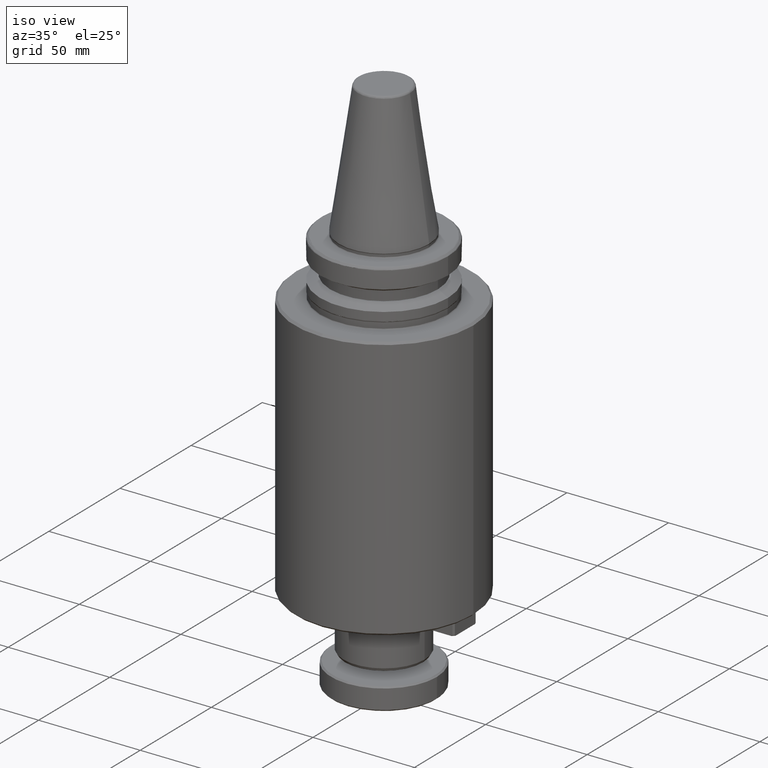
[diagram: clean part render]
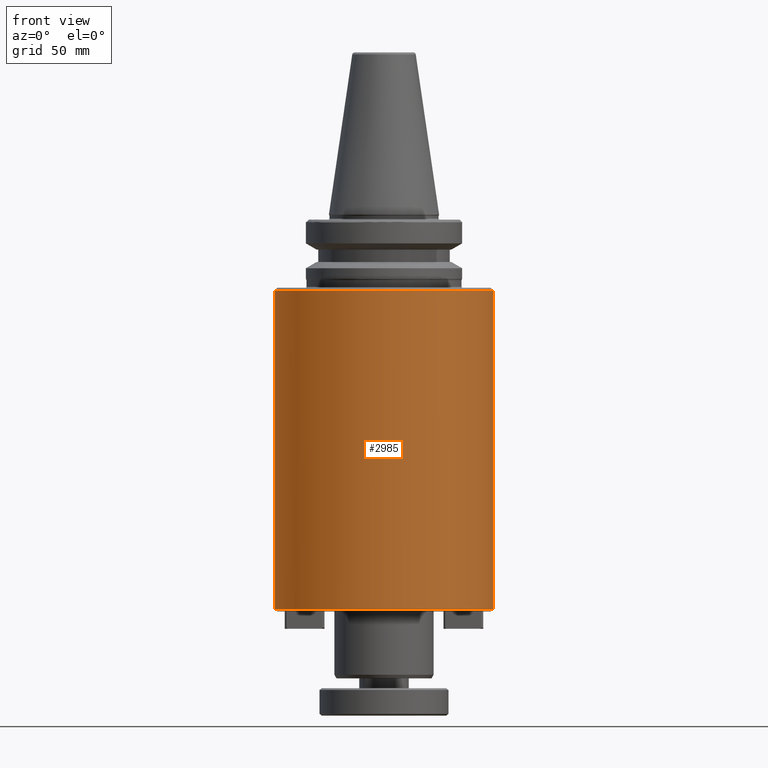
[diagram: tour spotlight — one face highlighted and labeled with its STEP entity id]
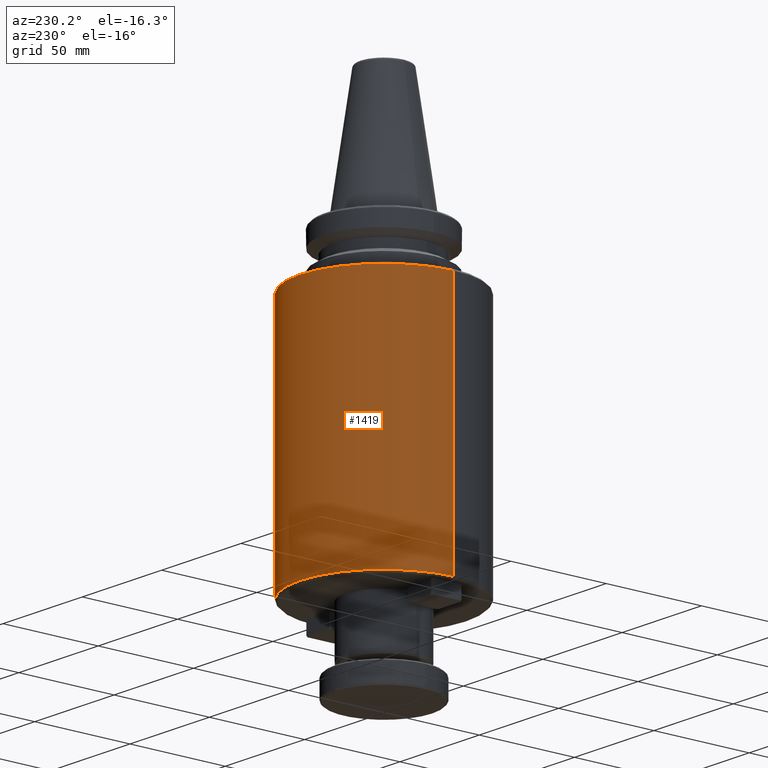
[diagram: tour spotlight — one face highlighted and labeled with its STEP entity id]
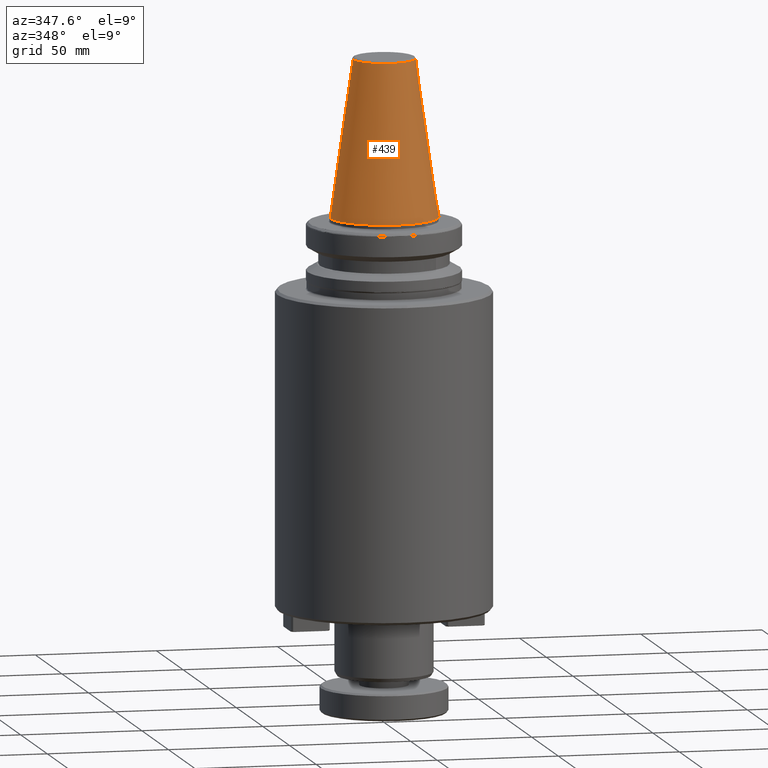
[diagram: tour spotlight — one face highlighted and labeled with its STEP entity id]
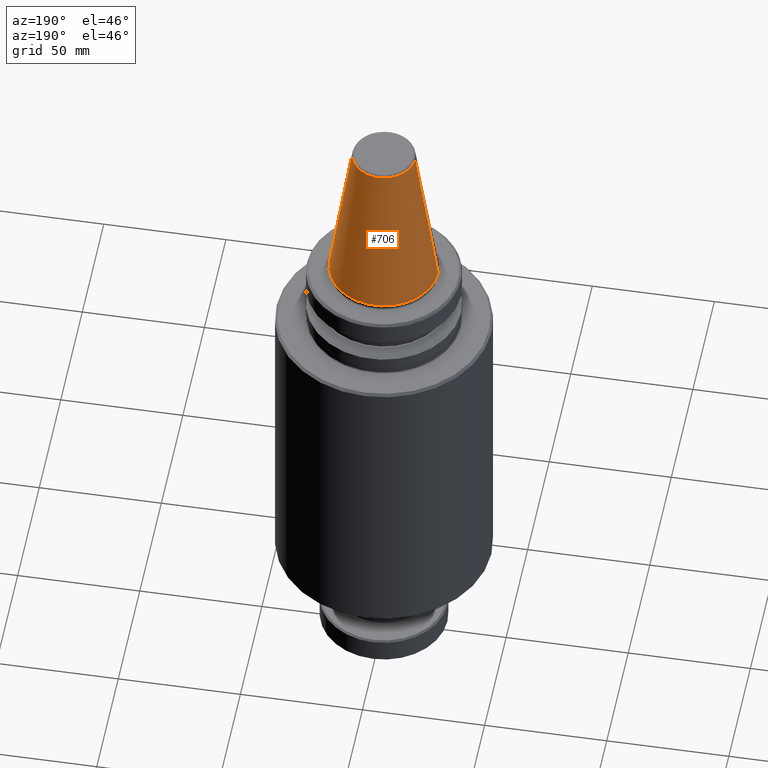
[diagram: tour spotlight — one face highlighted and labeled with its STEP entity id]
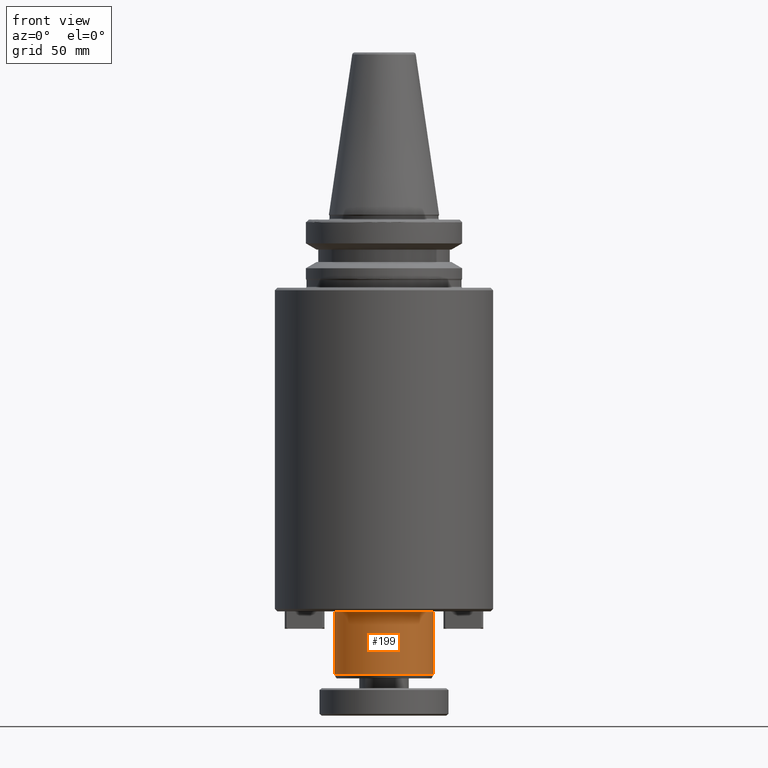
[diagram: tour spotlight — one face highlighted and labeled with its STEP entity id]
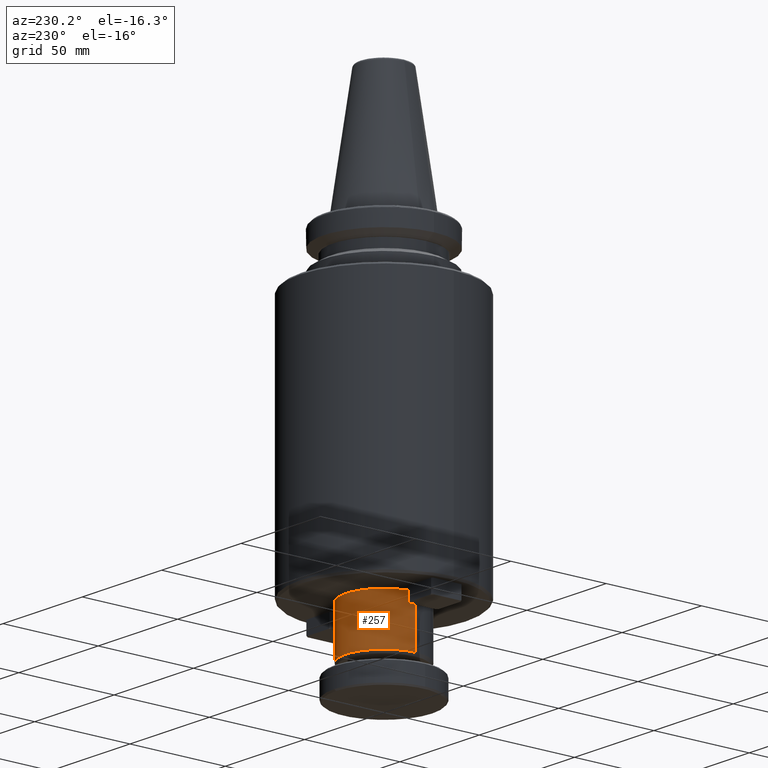
[diagram: tour spotlight — one face highlighted and labeled with its STEP entity id]
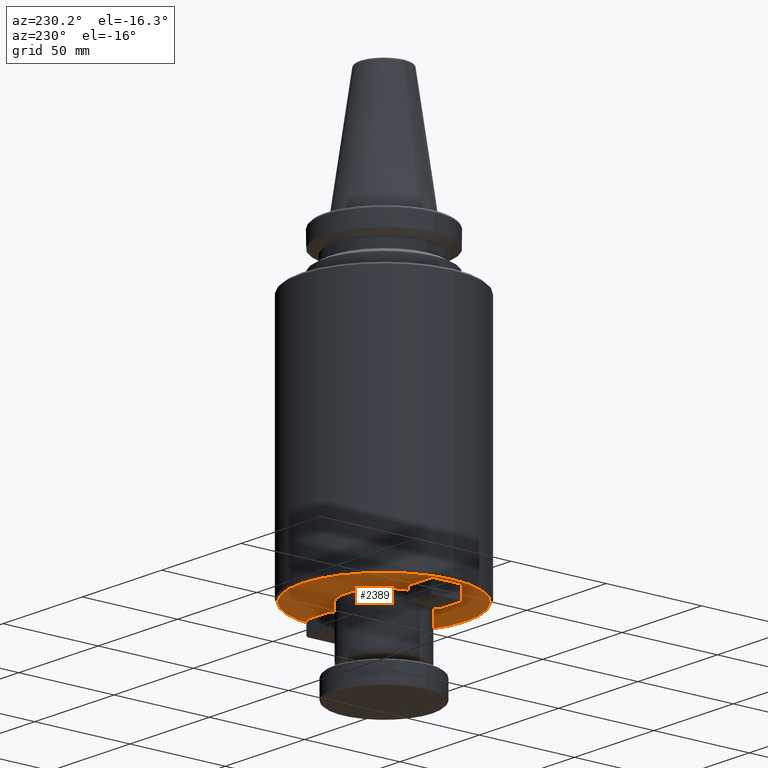
[diagram: tour spotlight — one face highlighted and labeled with its STEP entity id]
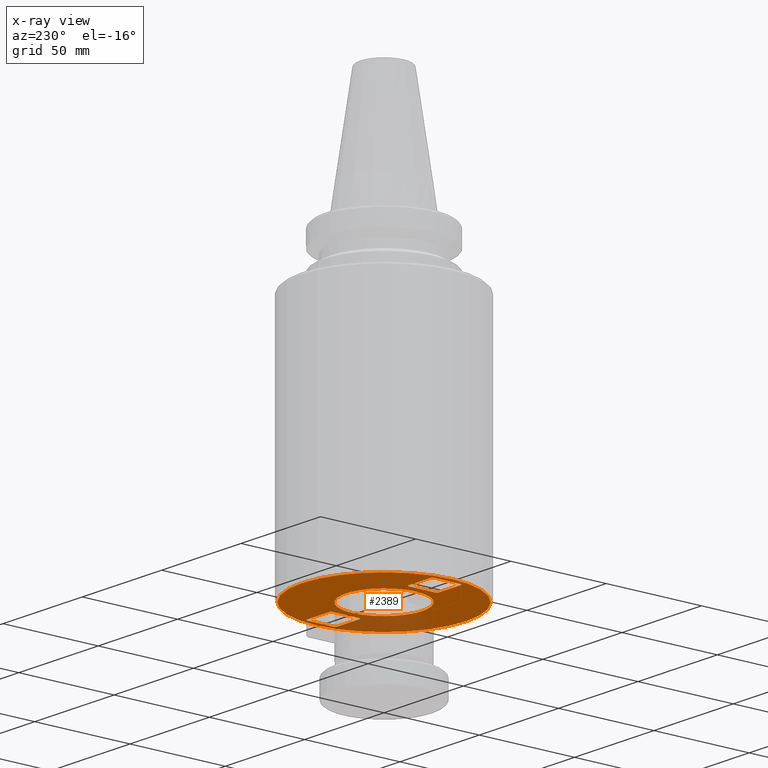
[diagram: x-ray of the same camera — body ghosted, this tour face saturated]
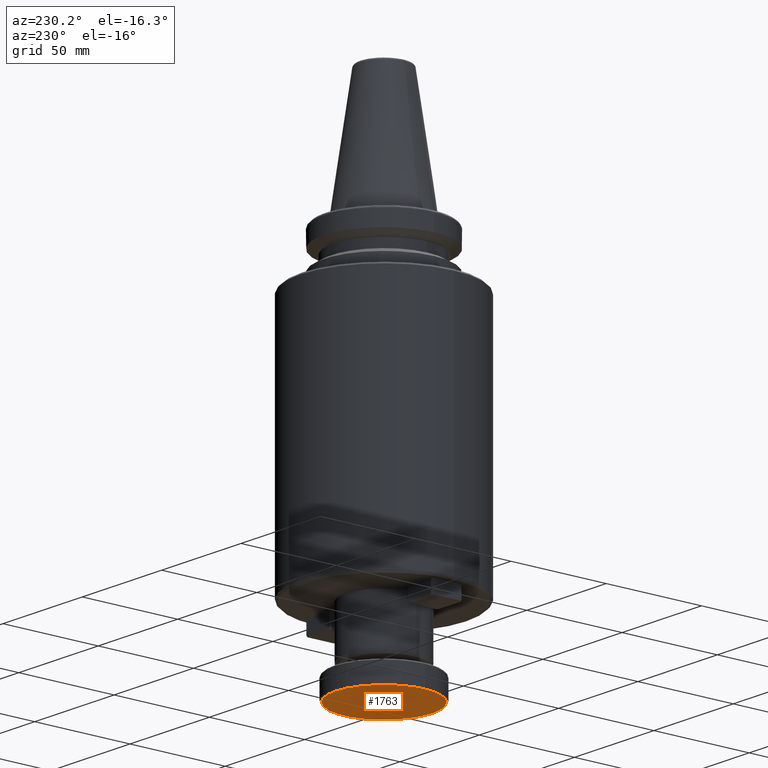
[diagram: tour spotlight — one face highlighted and labeled with its STEP entity id]
A machine part: a face-by-face anatomy tour. The part has 93 B-rep faces; the first image is the clean iso view, then the 8 largest visible faces are spotlighted one at a time (largest first), each with its STEP entity span.

Face 1 — front view, entity #2985. In plain terms, the highlighted cylindrical surface (partial cylindrical patch) has radius 44 mm, axis along (0, 0, 1).
Definition (entity closure, byte-faithful):
#42 = CARTESIAN_POINT ( 'NONE',  ( -44.00000000000000000, 5.388445916248353600E-015, -159.0000000000000300 ) ) ;
#125 = CARTESIAN_POINT ( 'NONE',  ( 5.388445916248351300E-015, -43.99999999999997900, -30.50000000000000000 ) ) ;
#158 = VECTOR ( 'NONE', #402, 1000.000000000000000 ) ;
#261 = CIRCLE ( 'NONE', #3400, 43.99999999999998600 ) ;
#402 = DIRECTION ( 'NONE',  ( 0.0000000000000000000, 0.0000000000000000000, 1.000000000000000000 ) ) ;
#408 = CARTESIAN_POINT ( 'NONE',  ( -43.99999999999998600, 5.388445916248352000E-015, 88.34764052968309000 ) ) ;
#499 = DIRECTION ( 'NONE',  ( 1.000000000000000000, 0.0000000000000000000, 0.0000000000000000000 ) ) ;
#546 = CARTESIAN_POINT ( 'NONE',  ( 0.0000000000000000000, 0.0000000000000000000, 88.34764052968309000 ) ) ;
#560 = ORIENTED_EDGE ( 'NONE', *, *, #2307, .T. ) ;
#566 = DIRECTION ( 'NONE',  ( 0.0000000000000000000, 0.0000000000000000000, 1.000000000000000000 ) ) ;
#573 = DIRECTION ( 'NONE',  ( 1.000000000000000000, 0.0000000000000000000, 0.0000000000000000000 ) ) ;
#677 = CARTESIAN_POINT ( 'NONE',  ( 43.99999999999998600, 0.0000000000000000000, 88.34764052968309000 ) ) ;
#769 = CARTESIAN_POINT ( 'NONE',  ( 0.0000000000000000000, 0.0000000000000000000, -30.50000000000000000 ) ) ;
#823 = VERTEX_POINT ( 'NONE', #2327 ) ;
#827 = EDGE_LOOP ( 'NONE', ( #1461, #1934, #3255, #560, #1923 ) ) ;
#1132 = CYLINDRICAL_SURFACE ( 'NONE', #2130, 43.99999999999998600 ) ;
#1133 = EDGE_CURVE ( 'NONE', #3306, #823, #261, .T. ) ;
#1155 = VERTEX_POINT ( 'NONE', #1602 ) ;
#1251 = CIRCLE ( 'NONE', #3314, 43.99999999999998600 ) ;
#1378 = EDGE_CURVE ( 'NONE', #1155, #2579, #2560, .T. ) ;
#1461 = ORIENTED_EDGE ( 'NONE', *, *, #3112, .F. ) ;
#1486 = DIRECTION ( 'NONE',  ( 1.000000000000000000, 0.0000000000000000000, 0.0000000000000000000 ) ) ;
#1493 = DIRECTION ( 'NONE',  ( 0.0000000000000000000, 0.0000000000000000000, 1.000000000000000000 ) ) ;
#1494 = CARTESIAN_POINT ( 'NONE',  ( 0.0000000000000000000, 0.0000000000000000000, -159.0000000000000300 ) ) ;
#1515 = CARTESIAN_POINT ( 'NONE',  ( 43.99999999999998600, 0.0000000000000000000, -30.50000000000000000 ) ) ;
#1602 = CARTESIAN_POINT ( 'NONE',  ( 44.00000000000000000, 0.0000000000000000000, -159.0000000000000300 ) ) ;
#1923 = ORIENTED_EDGE ( 'NONE', *, *, #1133, .T. ) ;
#1934 = ORIENTED_EDGE ( 'NONE', *, *, #2599, .T. ) ;
#2045 = DIRECTION ( 'NONE',  ( 1.000000000000000000, 0.0000000000000000000, 0.0000000000000000000 ) ) ;
#2050 = DIRECTION ( 'NONE',  ( -0.0000000000000000000, -0.0000000000000000000, -1.000000000000000000 ) ) ;
#2054 = CARTESIAN_POINT ( 'NONE',  ( 0.0000000000000000000, 0.0000000000000000000, -30.50000000000000000 ) ) ;
#2100 = DIRECTION ( 'NONE',  ( 0.0000000000000000000, 0.0000000000000000000, 1.000000000000000000 ) ) ;
#2130 = AXIS2_PLACEMENT_3D ( 'NONE', #546, #566, #573 ) ;
#2285 = LINE ( 'NONE', #408, #158 ) ;
#2307 = EDGE_CURVE ( 'NONE', #2579, #3306, #1251, .T. ) ;
#2327 = CARTESIAN_POINT ( 'NONE',  ( -43.99999999999998600, 5.388445916248352000E-015, -30.50000000000000000 ) ) ;
#2440 = DIRECTION ( 'NONE',  ( -0.0000000000000000000, -0.0000000000000000000, -1.000000000000000000 ) ) ;
#2560 = LINE ( 'NONE', #677, #2615 ) ;
#2579 = VERTEX_POINT ( 'NONE', #1515 ) ;
#2582 = FACE_OUTER_BOUND ( 'NONE', #827, .T. ) ;
#2599 = EDGE_CURVE ( 'NONE', #3343, #1155, #3164, .T. ) ;
#2615 = VECTOR ( 'NONE', #2100, 1000.000000000000000 ) ;
#2985 = ADVANCED_FACE ( 'NONE', ( #2582 ), #1132, .T. ) ;
#3007 = AXIS2_PLACEMENT_3D ( 'NONE', #1494, #1493, #1486 ) ;
#3112 = EDGE_CURVE ( 'NONE', #3343, #823, #2285, .T. ) ;
#3164 = CIRCLE ( 'NONE', #3007, 43.99999999999998600 ) ;
#3255 = ORIENTED_EDGE ( 'NONE', *, *, #1378, .T. ) ;
#3306 = VERTEX_POINT ( 'NONE', #125 ) ;
#3314 = AXIS2_PLACEMENT_3D ( 'NONE', #2054, #2050, #2045 ) ;
#3343 = VERTEX_POINT ( 'NONE', #42 ) ;
#3400 = AXIS2_PLACEMENT_3D ( 'NONE', #769, #2440, #499 ) ;

Face 2 — auxiliary view, entity #1419. In plain terms, the highlighted cylindrical surface (partial cylindrical patch) has radius 44 mm, axis along (0, 0, 1).
Definition (entity closure, byte-faithful):
#42 = CARTESIAN_POINT ( 'NONE',  ( -44.00000000000000000, 5.388445916248353600E-015, -159.0000000000000300 ) ) ;
#128 = DIRECTION ( 'NONE',  ( 1.000000000000000000, 0.0000000000000000000, 0.0000000000000000000 ) ) ;
#133 = DIRECTION ( 'NONE',  ( 0.0000000000000000000, 0.0000000000000000000, 1.000000000000000000 ) ) ;
#136 = CARTESIAN_POINT ( 'NONE',  ( 0.0000000000000000000, 0.0000000000000000000, -159.0000000000000300 ) ) ;
#158 = VECTOR ( 'NONE', #402, 1000.000000000000000 ) ;
#323 = VERTEX_POINT ( 'NONE', #1620 ) ;
#402 = DIRECTION ( 'NONE',  ( 0.0000000000000000000, 0.0000000000000000000, 1.000000000000000000 ) ) ;
#408 = CARTESIAN_POINT ( 'NONE',  ( -43.99999999999998600, 5.388445916248352000E-015, 88.34764052968309000 ) ) ;
#430 = DIRECTION ( 'NONE',  ( 0.0000000000000000000, 0.0000000000000000000, 1.000000000000000000 ) ) ;
#652 = CARTESIAN_POINT ( 'NONE',  ( 0.0000000000000000000, 0.0000000000000000000, -30.50000000000000000 ) ) ;
#677 = CARTESIAN_POINT ( 'NONE',  ( 43.99999999999998600, 0.0000000000000000000, 88.34764052968309000 ) ) ;
#739 = ORIENTED_EDGE ( 'NONE', *, *, #1378, .F. ) ;
#823 = VERTEX_POINT ( 'NONE', #2327 ) ;
#1040 = DIRECTION ( 'NONE',  ( -0.0000000000000000000, -0.0000000000000000000, -1.000000000000000000 ) ) ;
#1155 = VERTEX_POINT ( 'NONE', #1602 ) ;
#1378 = EDGE_CURVE ( 'NONE', #1155, #2579, #2560, .T. ) ;
#1380 = ORIENTED_EDGE ( 'NONE', *, *, #3279, .T. ) ;
#1389 = ORIENTED_EDGE ( 'NONE', *, *, #3112, .T. ) ;
#1419 = ADVANCED_FACE ( 'NONE', ( #2826 ), #2878, .T. ) ;
#1452 = AXIS2_PLACEMENT_3D ( 'NONE', #3120, #3118, #3116 ) ;
#1513 = EDGE_CURVE ( 'NONE', #323, #2579, #3352, .T. ) ;
#1515 = CARTESIAN_POINT ( 'NONE',  ( 43.99999999999998600, 0.0000000000000000000, -30.50000000000000000 ) ) ;
#1565 = ORIENTED_EDGE ( 'NONE', *, *, #1513, .T. ) ;
#1602 = CARTESIAN_POINT ( 'NONE',  ( 44.00000000000000000, 0.0000000000000000000, -159.0000000000000300 ) ) ;
#1620 = CARTESIAN_POINT ( 'NONE',  ( 0.0000000000000000000, 43.99999999999998600, -30.50000000000000000 ) ) ;
#1657 = AXIS2_PLACEMENT_3D ( 'NONE', #136, #133, #128 ) ;
#1814 = EDGE_CURVE ( 'NONE', #823, #323, #1876, .T. ) ;
#1876 = CIRCLE ( 'NONE', #1452, 43.99999999999998600 ) ;
#2051 = DIRECTION ( 'NONE',  ( 1.000000000000000000, 0.0000000000000000000, 0.0000000000000000000 ) ) ;
#2075 = CARTESIAN_POINT ( 'NONE',  ( 0.0000000000000000000, 0.0000000000000000000, 88.34764052968309000 ) ) ;
#2100 = DIRECTION ( 'NONE',  ( 0.0000000000000000000, 0.0000000000000000000, 1.000000000000000000 ) ) ;
#2285 = LINE ( 'NONE', #408, #158 ) ;
#2327 = CARTESIAN_POINT ( 'NONE',  ( -43.99999999999998600, 5.388445916248352000E-015, -30.50000000000000000 ) ) ;
#2560 = LINE ( 'NONE', #677, #2615 ) ;
#2579 = VERTEX_POINT ( 'NONE', #1515 ) ;
#2615 = VECTOR ( 'NONE', #2100, 1000.000000000000000 ) ;
#2686 = DIRECTION ( 'NONE',  ( 1.000000000000000000, 0.0000000000000000000, 0.0000000000000000000 ) ) ;
#2826 = FACE_OUTER_BOUND ( 'NONE', #3384, .T. ) ;
#2862 = AXIS2_PLACEMENT_3D ( 'NONE', #652, #1040, #2686 ) ;
#2878 = CYLINDRICAL_SURFACE ( 'NONE', #3134, 43.99999999999998600 ) ;
#3045 = CIRCLE ( 'NONE', #1657, 43.99999999999998600 ) ;
#3112 = EDGE_CURVE ( 'NONE', #3343, #823, #2285, .T. ) ;
#3116 = DIRECTION ( 'NONE',  ( 1.000000000000000000, 0.0000000000000000000, 0.0000000000000000000 ) ) ;
#3118 = DIRECTION ( 'NONE',  ( -0.0000000000000000000, -0.0000000000000000000, -1.000000000000000000 ) ) ;
#3120 = CARTESIAN_POINT ( 'NONE',  ( 0.0000000000000000000, 0.0000000000000000000, -30.50000000000000000 ) ) ;
#3134 = AXIS2_PLACEMENT_3D ( 'NONE', #2075, #430, #2051 ) ;
#3279 = EDGE_CURVE ( 'NONE', #1155, #3343, #3045, .T. ) ;
#3343 = VERTEX_POINT ( 'NONE', #42 ) ;
#3352 = CIRCLE ( 'NONE', #2862, 43.99999999999998600 ) ;
#3384 = EDGE_LOOP ( 'NONE', ( #1380, #1389, #3478, #1565, #739 ) ) ;
#3478 = ORIENTED_EDGE ( 'NONE', *, *, #1814, .T. ) ;

Face 3 — auxiliary view, entity #439. In plain terms, the highlighted conical surface has half-angle 8.297 deg.
Definition (entity closure, byte-faithful):
#167 = VERTEX_POINT ( 'NONE', #1033 ) ;
#216 = DIRECTION ( 'NONE',  ( 0.1443082272673070200, 1.767266086135363300E-017, -0.9895327864921743500 ) ) ;
#383 = VERTEX_POINT ( 'NONE', #661 ) ;
#439 = ADVANCED_FACE ( 'NONE', ( #3551 ), #1196, .T. ) ;
#470 = CARTESIAN_POINT ( 'NONE',  ( 0.0000000000000000000, 0.0000000000000000000, 64.54430822726730800 ) ) ;
#658 = EDGE_CURVE ( 'NONE', #770, #167, #3012, .T. ) ;
#661 = CARTESIAN_POINT ( 'NONE',  ( 12.81219950706225000, 2.145409711370550300E-015, 64.54430822726730800 ) ) ;
#733 = CARTESIAN_POINT ( 'NONE',  ( 0.0000000000000000000, 0.0000000000000000000, -2.775557561562891400E-014 ) ) ;
#770 = VERTEX_POINT ( 'NONE', #1453 ) ;
#1033 = CARTESIAN_POINT ( 'NONE',  ( -22.22500000000000100, 0.0000000000000000000, 0.0000000000000000000 ) ) ;
#1196 = CONICAL_SURFACE ( 'NONE', #1407, 22.22500000000000500, 0.1448138465474190200 ) ;
#1244 = LINE ( 'NONE', #2727, #2708 ) ;
#1407 = AXIS2_PLACEMENT_3D ( 'NONE', #733, #2693, #1624 ) ;
#1453 = CARTESIAN_POINT ( 'NONE',  ( -12.81219950706225000, 0.0000000000000000000, 64.54430822726730800 ) ) ;
#1476 = ORIENTED_EDGE ( 'NONE', *, *, #1777, .F. ) ;
#1479 = ORIENTED_EDGE ( 'NONE', *, *, #3453, .F. ) ;
#1624 = DIRECTION ( 'NONE',  ( -1.000000000000000000, 0.0000000000000000000, 0.0000000000000000000 ) ) ;
#1629 = EDGE_LOOP ( 'NONE', ( #1479, #2435, #3217, #1476 ) ) ;
#1646 = AXIS2_PLACEMENT_3D ( 'NONE', #3177, #3173, #3172 ) ;
#1679 = EDGE_CURVE ( 'NONE', #383, #770, #3023, .T. ) ;
#1719 = VERTEX_POINT ( 'NONE', #2493 ) ;
#1722 = CARTESIAN_POINT ( 'NONE',  ( -22.22500000000000500, 0.0000000000000000000, -2.775557561562891400E-014 ) ) ;
#1777 = EDGE_CURVE ( 'NONE', #1719, #167, #3510, .T. ) ;
#1845 = AXIS2_PLACEMENT_3D ( 'NONE', #470, #2248, #2168 ) ;
#2168 = DIRECTION ( 'NONE',  ( -1.000000000000000000, 0.0000000000000000000, 0.0000000000000000000 ) ) ;
#2248 = DIRECTION ( 'NONE',  ( 0.0000000000000000000, 0.0000000000000000000, -1.000000000000000000 ) ) ;
#2435 = ORIENTED_EDGE ( 'NONE', *, *, #1679, .T. ) ;
#2493 = CARTESIAN_POINT ( 'NONE',  ( 22.22500000000000100, 2.721777511104992800E-015, 0.0000000000000000000 ) ) ;
#2654 = DIRECTION ( 'NONE',  ( -0.1443082272673070200, 0.0000000000000000000, -0.9895327864921743500 ) ) ;
#2693 = DIRECTION ( 'NONE',  ( 0.0000000000000000000, 0.0000000000000000000, -1.000000000000000000 ) ) ;
#2708 = VECTOR ( 'NONE', #216, 1000.000000000000000 ) ;
#2727 = CARTESIAN_POINT ( 'NONE',  ( 22.22500000000000500, 2.721777511104993200E-015, -2.775557561562891400E-014 ) ) ;
#3012 = LINE ( 'NONE', #1722, #3264 ) ;
#3023 = CIRCLE ( 'NONE', #1845, 12.81219950706225000 ) ;
#3172 = DIRECTION ( 'NONE',  ( 1.000000000000000000, 0.0000000000000000000, 9.822541477422708000E-017 ) ) ;
#3173 = DIRECTION ( 'NONE',  ( -0.0000000000000000000, -0.0000000000000000000, -1.000000000000000000 ) ) ;
#3177 = CARTESIAN_POINT ( 'NONE',  ( 0.0000000000000000000, 0.0000000000000000000, 0.0000000000000000000 ) ) ;
#3217 = ORIENTED_EDGE ( 'NONE', *, *, #658, .T. ) ;
#3264 = VECTOR ( 'NONE', #2654, 1000.000000000000000 ) ;
#3453 = EDGE_CURVE ( 'NONE', #383, #1719, #1244, .T. ) ;
#3510 = CIRCLE ( 'NONE', #1646, 22.22500000000000500 ) ;
#3551 = FACE_OUTER_BOUND ( 'NONE', #1629, .T. ) ;

Face 4 — auxiliary view, entity #706. In plain terms, the highlighted conical surface has half-angle 8.297 deg.
Definition (entity closure, byte-faithful):
#66 = ORIENTED_EDGE ( 'NONE', *, *, #3453, .T. ) ;
#167 = VERTEX_POINT ( 'NONE', #1033 ) ;
#216 = DIRECTION ( 'NONE',  ( 0.1443082272673070200, 1.767266086135363300E-017, -0.9895327864921743500 ) ) ;
#220 = EDGE_CURVE ( 'NONE', #167, #1719, #2114, .T. ) ;
#383 = VERTEX_POINT ( 'NONE', #661 ) ;
#594 = CARTESIAN_POINT ( 'NONE',  ( 0.0000000000000000000, 0.0000000000000000000, -2.775557561562891400E-014 ) ) ;
#658 = EDGE_CURVE ( 'NONE', #770, #167, #3012, .T. ) ;
#661 = CARTESIAN_POINT ( 'NONE',  ( 12.81219950706225000, 2.145409711370550300E-015, 64.54430822726730800 ) ) ;
#706 = ADVANCED_FACE ( 'NONE', ( #3154 ), #1728, .T. ) ;
#710 = AXIS2_PLACEMENT_3D ( 'NONE', #3494, #2403, #1637 ) ;
#760 = AXIS2_PLACEMENT_3D ( 'NONE', #2092, #2897, #1824 ) ;
#770 = VERTEX_POINT ( 'NONE', #1453 ) ;
#1018 = ORIENTED_EDGE ( 'NONE', *, *, #1339, .T. ) ;
#1033 = CARTESIAN_POINT ( 'NONE',  ( -22.22500000000000100, 0.0000000000000000000, 0.0000000000000000000 ) ) ;
#1208 = DIRECTION ( 'NONE',  ( 0.0000000000000000000, 0.0000000000000000000, -1.000000000000000000 ) ) ;
#1244 = LINE ( 'NONE', #2727, #2708 ) ;
#1339 = EDGE_CURVE ( 'NONE', #770, #383, #2439, .T. ) ;
#1398 = EDGE_LOOP ( 'NONE', ( #1018, #66, #2382, #3524 ) ) ;
#1453 = CARTESIAN_POINT ( 'NONE',  ( -12.81219950706225000, 0.0000000000000000000, 64.54430822726730800 ) ) ;
#1637 = DIRECTION ( 'NONE',  ( -1.000000000000000000, 0.0000000000000000000, 0.0000000000000000000 ) ) ;
#1719 = VERTEX_POINT ( 'NONE', #2493 ) ;
#1722 = CARTESIAN_POINT ( 'NONE',  ( -22.22500000000000500, 0.0000000000000000000, -2.775557561562891400E-014 ) ) ;
#1728 = CONICAL_SURFACE ( 'NONE', #2574, 22.22500000000000500, 0.1448138465474190200 ) ;
#1824 = DIRECTION ( 'NONE',  ( 1.000000000000000000, 0.0000000000000000000, 9.822541477422708000E-017 ) ) ;
#2092 = CARTESIAN_POINT ( 'NONE',  ( 0.0000000000000000000, 0.0000000000000000000, 0.0000000000000000000 ) ) ;
#2114 = CIRCLE ( 'NONE', #760, 22.22500000000000500 ) ;
#2382 = ORIENTED_EDGE ( 'NONE', *, *, #220, .F. ) ;
#2403 = DIRECTION ( 'NONE',  ( 0.0000000000000000000, 0.0000000000000000000, -1.000000000000000000 ) ) ;
#2439 = CIRCLE ( 'NONE', #710, 12.81219950706225000 ) ;
#2493 = CARTESIAN_POINT ( 'NONE',  ( 22.22500000000000100, 2.721777511104992800E-015, 0.0000000000000000000 ) ) ;
#2574 = AXIS2_PLACEMENT_3D ( 'NONE', #594, #1208, #3364 ) ;
#2654 = DIRECTION ( 'NONE',  ( -0.1443082272673070200, 0.0000000000000000000, -0.9895327864921743500 ) ) ;
#2708 = VECTOR ( 'NONE', #216, 1000.000000000000000 ) ;
#2727 = CARTESIAN_POINT ( 'NONE',  ( 22.22500000000000500, 2.721777511104993200E-015, -2.775557561562891400E-014 ) ) ;
#2897 = DIRECTION ( 'NONE',  ( -0.0000000000000000000, -0.0000000000000000000, -1.000000000000000000 ) ) ;
#3012 = LINE ( 'NONE', #1722, #3264 ) ;
#3154 = FACE_OUTER_BOUND ( 'NONE', #1398, .T. ) ;
#3264 = VECTOR ( 'NONE', #2654, 1000.000000000000000 ) ;
#3364 = DIRECTION ( 'NONE',  ( -1.000000000000000000, 0.0000000000000000000, 0.0000000000000000000 ) ) ;
#3453 = EDGE_CURVE ( 'NONE', #383, #1719, #1244, .T. ) ;
#3494 = CARTESIAN_POINT ( 'NONE',  ( 0.0000000000000000000, 0.0000000000000000000, 64.54430822726730800 ) ) ;
#3524 = ORIENTED_EDGE ( 'NONE', *, *, #658, .F. ) ;

Face 5 — front view, entity #199. In plain terms, the highlighted cylindrical surface (partial cylindrical patch) has radius 20 mm, axis along (0, 0, 1).
Definition (entity closure, byte-faithful):
#70 = ORIENTED_EDGE ( 'NONE', *, *, #2697, .T. ) ;
#99 = CIRCLE ( 'NONE', #1978, 20.00000000000000000 ) ;
#109 = AXIS2_PLACEMENT_3D ( 'NONE', #1908, #1604, #1077 ) ;
#187 = CARTESIAN_POINT ( 'NONE',  ( -20.00000000000000000, 2.449293598294706500E-015, -185.5277568135664700 ) ) ;
#199 = ADVANCED_FACE ( 'NONE', ( #2538 ), #2678, .T. ) ;
#582 = CARTESIAN_POINT ( 'NONE',  ( 20.00000000000000000, 0.0000000000000000000, -160.0000000000000300 ) ) ;
#618 = DIRECTION ( 'NONE',  ( 0.0000000000000000000, 0.0000000000000000000, 1.000000000000000000 ) ) ;
#1077 = DIRECTION ( 'NONE',  ( 1.000000000000000000, 0.0000000000000000000, 0.0000000000000000000 ) ) ;
#1169 = CARTESIAN_POINT ( 'NONE',  ( -20.00000000000000000, 2.449293598294706500E-015, -160.0000000000000300 ) ) ;
#1240 = DIRECTION ( 'NONE',  ( 1.000000000000000000, 0.0000000000000000000, 0.0000000000000000000 ) ) ;
#1247 = DIRECTION ( 'NONE',  ( 0.0000000000000000000, 0.0000000000000000000, 1.000000000000000000 ) ) ;
#1248 = CARTESIAN_POINT ( 'NONE',  ( 0.0000000000000000000, 0.0000000000000000000, -185.5277568135664700 ) ) ;
#1254 = CARTESIAN_POINT ( 'NONE',  ( 20.00000000000000000, 0.0000000000000000000, 88.34764052968309000 ) ) ;
#1345 = AXIS2_PLACEMENT_3D ( 'NONE', #1248, #1247, #1240 ) ;
#1455 = DIRECTION ( 'NONE',  ( 1.000000000000000000, 0.0000000000000000000, 0.0000000000000000000 ) ) ;
#1456 = DIRECTION ( 'NONE',  ( -0.0000000000000000000, -0.0000000000000000000, -1.000000000000000000 ) ) ;
#1458 = CARTESIAN_POINT ( 'NONE',  ( 0.0000000000000000000, 0.0000000000000000000, -160.0000000000000300 ) ) ;
#1487 = EDGE_CURVE ( 'NONE', #2566, #2957, #1983, .T. ) ;
#1519 = CARTESIAN_POINT ( 'NONE',  ( 20.00000000000000000, 0.0000000000000000000, -185.5277568135664700 ) ) ;
#1604 = DIRECTION ( 'NONE',  ( 0.0000000000000000000, 0.0000000000000000000, 1.000000000000000000 ) ) ;
#1613 = LINE ( 'NONE', #2612, #3420 ) ;
#1663 = EDGE_CURVE ( 'NONE', #3268, #3489, #1613, .T. ) ;
#1678 = ORIENTED_EDGE ( 'NONE', *, *, #1487, .T. ) ;
#1908 = CARTESIAN_POINT ( 'NONE',  ( 0.0000000000000000000, 0.0000000000000000000, 88.34764052968309000 ) ) ;
#1978 = AXIS2_PLACEMENT_3D ( 'NONE', #1458, #1456, #1455 ) ;
#1983 = LINE ( 'NONE', #1254, #3103 ) ;
#2538 = FACE_OUTER_BOUND ( 'NONE', #2916, .T. ) ;
#2566 = VERTEX_POINT ( 'NONE', #1519 ) ;
#2612 = CARTESIAN_POINT ( 'NONE',  ( -20.00000000000000000, 2.449293598294706500E-015, 88.34764052968309000 ) ) ;
#2618 = EDGE_CURVE ( 'NONE', #2957, #3489, #99, .T. ) ;
#2678 = CYLINDRICAL_SURFACE ( 'NONE', #109, 20.00000000000000000 ) ;
#2697 = EDGE_CURVE ( 'NONE', #3268, #2566, #2808, .T. ) ;
#2807 = ORIENTED_EDGE ( 'NONE', *, *, #2618, .T. ) ;
#2808 = CIRCLE ( 'NONE', #1345, 20.00000000000000000 ) ;
#2829 = ORIENTED_EDGE ( 'NONE', *, *, #1663, .F. ) ;
#2916 = EDGE_LOOP ( 'NONE', ( #2829, #70, #1678, #2807 ) ) ;
#2957 = VERTEX_POINT ( 'NONE', #582 ) ;
#3103 = VECTOR ( 'NONE', #618, 1000.000000000000000 ) ;
#3140 = DIRECTION ( 'NONE',  ( 0.0000000000000000000, 0.0000000000000000000, 1.000000000000000000 ) ) ;
#3268 = VERTEX_POINT ( 'NONE', #187 ) ;
#3420 = VECTOR ( 'NONE', #3140, 1000.000000000000000 ) ;
#3489 = VERTEX_POINT ( 'NONE', #1169 ) ;

Face 6 — auxiliary view, entity #257. In plain terms, the highlighted cylindrical surface (partial cylindrical patch) has radius 20 mm, axis along (0, 0, 1).
Definition (entity closure, byte-faithful):
#1 = CIRCLE ( 'NONE', #225, 20.00000000000000000 ) ;
#187 = CARTESIAN_POINT ( 'NONE',  ( -20.00000000000000000, 2.449293598294706500E-015, -185.5277568135664700 ) ) ;
#225 = AXIS2_PLACEMENT_3D ( 'NONE', #2847, #2845, #2844 ) ;
#257 = ADVANCED_FACE ( 'NONE', ( #2811 ), #2890, .T. ) ;
#357 = ORIENTED_EDGE ( 'NONE', *, *, #2041, .T. ) ;
#423 = EDGE_LOOP ( 'NONE', ( #357, #1848, #2151, #3351 ) ) ;
#582 = CARTESIAN_POINT ( 'NONE',  ( 20.00000000000000000, 0.0000000000000000000, -160.0000000000000300 ) ) ;
#618 = DIRECTION ( 'NONE',  ( 0.0000000000000000000, 0.0000000000000000000, 1.000000000000000000 ) ) ;
#699 = DIRECTION ( 'NONE',  ( -0.0000000000000000000, -0.0000000000000000000, -1.000000000000000000 ) ) ;
#867 = AXIS2_PLACEMENT_3D ( 'NONE', #1656, #1377, #1312 ) ;
#1169 = CARTESIAN_POINT ( 'NONE',  ( -20.00000000000000000, 2.449293598294706500E-015, -160.0000000000000300 ) ) ;
#1219 = CIRCLE ( 'NONE', #2220, 20.00000000000000000 ) ;
#1254 = CARTESIAN_POINT ( 'NONE',  ( 20.00000000000000000, 0.0000000000000000000, 88.34764052968309000 ) ) ;
#1312 = DIRECTION ( 'NONE',  ( 1.000000000000000000, 0.0000000000000000000, 0.0000000000000000000 ) ) ;
#1377 = DIRECTION ( 'NONE',  ( 0.0000000000000000000, 0.0000000000000000000, 1.000000000000000000 ) ) ;
#1487 = EDGE_CURVE ( 'NONE', #2566, #2957, #1983, .T. ) ;
#1519 = CARTESIAN_POINT ( 'NONE',  ( 20.00000000000000000, 0.0000000000000000000, -185.5277568135664700 ) ) ;
#1569 = EDGE_CURVE ( 'NONE', #3489, #2957, #1219, .T. ) ;
#1613 = LINE ( 'NONE', #2612, #3420 ) ;
#1656 = CARTESIAN_POINT ( 'NONE',  ( 0.0000000000000000000, 0.0000000000000000000, 88.34764052968309000 ) ) ;
#1663 = EDGE_CURVE ( 'NONE', #3268, #3489, #1613, .T. ) ;
#1848 = ORIENTED_EDGE ( 'NONE', *, *, #1663, .T. ) ;
#1983 = LINE ( 'NONE', #1254, #3103 ) ;
#2041 = EDGE_CURVE ( 'NONE', #2566, #3268, #1, .T. ) ;
#2151 = ORIENTED_EDGE ( 'NONE', *, *, #1569, .T. ) ;
#2220 = AXIS2_PLACEMENT_3D ( 'NONE', #2644, #699, #2366 ) ;
#2366 = DIRECTION ( 'NONE',  ( 1.000000000000000000, 0.0000000000000000000, 0.0000000000000000000 ) ) ;
#2566 = VERTEX_POINT ( 'NONE', #1519 ) ;
#2612 = CARTESIAN_POINT ( 'NONE',  ( -20.00000000000000000, 2.449293598294706500E-015, 88.34764052968309000 ) ) ;
#2644 = CARTESIAN_POINT ( 'NONE',  ( 0.0000000000000000000, 0.0000000000000000000, -160.0000000000000300 ) ) ;
#2811 = FACE_OUTER_BOUND ( 'NONE', #423, .T. ) ;
#2844 = DIRECTION ( 'NONE',  ( 1.000000000000000000, 0.0000000000000000000, 0.0000000000000000000 ) ) ;
#2845 = DIRECTION ( 'NONE',  ( 0.0000000000000000000, 0.0000000000000000000, 1.000000000000000000 ) ) ;
#2847 = CARTESIAN_POINT ( 'NONE',  ( 0.0000000000000000000, 0.0000000000000000000, -185.5277568135664700 ) ) ;
#2890 = CYLINDRICAL_SURFACE ( 'NONE', #867, 20.00000000000000000 ) ;
#2957 = VERTEX_POINT ( 'NONE', #582 ) ;
#3103 = VECTOR ( 'NONE', #618, 1000.000000000000000 ) ;
#3140 = DIRECTION ( 'NONE',  ( 0.0000000000000000000, 0.0000000000000000000, 1.000000000000000000 ) ) ;
#3268 = VERTEX_POINT ( 'NONE', #187 ) ;
#3351 = ORIENTED_EDGE ( 'NONE', *, *, #1487, .F. ) ;
#3420 = VECTOR ( 'NONE', #3140, 1000.000000000000000 ) ;
#3489 = VERTEX_POINT ( 'NONE', #1169 ) ;

Face 7 — auxiliary view, entity #2389. An x-ray twin of the same camera follows (body ghosted, this face saturated) — the face is partly hidden behind the body. In plain terms, the highlighted planar face has unit normal (0, 0, 1).
Definition (entity closure, byte-faithful):
#19 = ORIENTED_EDGE ( 'NONE', *, *, #287, .F. ) ;
#20 = CARTESIAN_POINT ( 'NONE',  ( 0.0000000000000000000, 8.000000000000000000, -160.0000000000000000 ) ) ;
#23 = VECTOR ( 'NONE', #3298, 1000.000000000000100 ) ;
#26 = CARTESIAN_POINT ( 'NONE',  ( 43.00000000000000000, 0.0000000000000000000, -160.0000000000000300 ) ) ;
#27 = EDGE_CURVE ( 'NONE', #2241, #600, #1875, .T. ) ;
#30 = ORIENTED_EDGE ( 'NONE', *, *, #1890, .F. ) ;
#99 = CIRCLE ( 'NONE', #1978, 20.00000000000000000 ) ;
#159 = ORIENTED_EDGE ( 'NONE', *, *, #2882, .T. ) ;
#190 = EDGE_LOOP ( 'NONE', ( #522, #1231 ) ) ;
#196 = CARTESIAN_POINT ( 'NONE',  ( 39.30000000000003300, -7.999999999999996400, -160.0000000000000000 ) ) ;
#218 = VECTOR ( 'NONE', #2558, 1000.000000000000100 ) ;
#222 = CIRCLE ( 'NONE', #3471, 43.00000000000000000 ) ;
#283 = ORIENTED_EDGE ( 'NONE', *, *, #27, .F. ) ;
#287 = EDGE_CURVE ( 'NONE', #485, #3392, #2896, .T. ) ;
#290 = VERTEX_POINT ( 'NONE', #1956 ) ;
#310 = CARTESIAN_POINT ( 'NONE',  ( 40.00000000000000000, 7.299999999999970500, -160.0000000000000000 ) ) ;
#319 = VERTEX_POINT ( 'NONE', #649 ) ;
#333 = LINE ( 'NONE', #1931, #23 ) ;
#374 = CARTESIAN_POINT ( 'NONE',  ( 24.00000000000000000, -7.299999999999959000, -160.0000000000000000 ) ) ;
#432 = EDGE_LOOP ( 'NONE', ( #3026, #19 ) ) ;
#458 = EDGE_CURVE ( 'NONE', #2241, #2433, #3578, .T. ) ;
#476 = VERTEX_POINT ( 'NONE', #771 ) ;
#480 = LINE ( 'NONE', #3234, #1022 ) ;
#485 = VERTEX_POINT ( 'NONE', #1391 ) ;
#486 = DIRECTION ( 'NONE',  ( 0.0000000000000000000, -1.000000000000000000, -0.0000000000000000000 ) ) ;
#491 = CARTESIAN_POINT ( 'NONE',  ( -24.00000000000000000, 7.299999999999966100, -160.0000000000000000 ) ) ;
#493 = DIRECTION ( 'NONE',  ( -0.7071067811865474600, 0.7071067811865474600, -0.0000000000000000000 ) ) ;
#500 = LINE ( 'NONE', #20, #849 ) ;
#505 = CARTESIAN_POINT ( 'NONE',  ( 24.70000000000006700, 7.999999999999986700, -160.0000000000000000 ) ) ;
#511 = CARTESIAN_POINT ( 'NONE',  ( -40.00000000000000000, -7.299999999999966100, -160.0000000000000000 ) ) ;
#520 = CARTESIAN_POINT ( 'NONE',  ( -24.70000000000003500, -8.000000000000000000, -160.0000000000000000 ) ) ;
#522 = ORIENTED_EDGE ( 'NONE', *, *, #2618, .F. ) ;
#523 = DIRECTION ( 'NONE',  ( -0.7071067811865340300, -0.7071067811865611200, -0.0000000000000000000 ) ) ;
#542 = EDGE_CURVE ( 'NONE', #3228, #2627, #2444, .T. ) ;
#578 = ORIENTED_EDGE ( 'NONE', *, *, #3024, .T. ) ;
#582 = CARTESIAN_POINT ( 'NONE',  ( 20.00000000000000000, 0.0000000000000000000, -160.0000000000000300 ) ) ;
#600 = VERTEX_POINT ( 'NONE', #3256 ) ;
#638 = VERTEX_POINT ( 'NONE', #1699 ) ;
#649 = CARTESIAN_POINT ( 'NONE',  ( -24.00000000000000000, -7.299999999999966100, -160.0000000000000000 ) ) ;
#699 = DIRECTION ( 'NONE',  ( -0.0000000000000000000, -0.0000000000000000000, -1.000000000000000000 ) ) ;
#703 = DIRECTION ( 'NONE',  ( 0.0000000000000000000, -0.0000000000000000000, 1.000000000000000000 ) ) ;
#732 = VERTEX_POINT ( 'NONE', #2049 ) ;
#771 = CARTESIAN_POINT ( 'NONE',  ( -39.29999999999996900, -8.000000000000000000, -160.0000000000000000 ) ) ;
#835 = VECTOR ( 'NONE', #3462, 1000.000000000000000 ) ;
#849 = VECTOR ( 'NONE', #3168, 1000.000000000000000 ) ;
#855 = LINE ( 'NONE', #2087, #1462 ) ;
#876 = ORIENTED_EDGE ( 'NONE', *, *, #995, .T. ) ;
#918 = VECTOR ( 'NONE', #1134, 1000.000000000000100 ) ;
#926 = EDGE_LOOP ( 'NONE', ( #1321, #2692, #1098, #2424, #1641, #1478, #876, #283 ) ) ;
#933 = VERTEX_POINT ( 'NONE', #1388 ) ;
#995 = EDGE_CURVE ( 'NONE', #3228, #600, #333, .T. ) ;
#1022 = VECTOR ( 'NONE', #3001, 1000.000000000000000 ) ;
#1025 = VERTEX_POINT ( 'NONE', #2499 ) ;
#1044 = EDGE_CURVE ( 'NONE', #638, #319, #1450, .T. ) ;
#1045 = DIRECTION ( 'NONE',  ( -0.7071067811865474600, -0.7071067811865474600, -0.0000000000000000000 ) ) ;
#1047 = VECTOR ( 'NONE', #1045, 1000.000000000000100 ) ;
#1079 = CARTESIAN_POINT ( 'NONE',  ( 0.0000000000000000000, -7.999999999999996400, -160.0000000000000000 ) ) ;
#1084 = CARTESIAN_POINT ( 'NONE',  ( -39.29999999999996900, 8.000000000000000000, -160.0000000000000000 ) ) ;
#1094 = CARTESIAN_POINT ( 'NONE',  ( 24.00000000000000000, -7.299999999999959000, -160.0000000000000000 ) ) ;
#1098 = ORIENTED_EDGE ( 'NONE', *, *, #3002, .T. ) ;
#1105 = LINE ( 'NONE', #1863, #1237 ) ;
#1134 = DIRECTION ( 'NONE',  ( 0.7071067811865474600, -0.7071067811865474600, -0.0000000000000000000 ) ) ;
#1138 = EDGE_CURVE ( 'NONE', #1202, #3459, #480, .T. ) ;
#1169 = CARTESIAN_POINT ( 'NONE',  ( -20.00000000000000000, 2.449293598294706500E-015, -160.0000000000000300 ) ) ;
#1182 = EDGE_CURVE ( 'NONE', #732, #319, #1105, .T. ) ;
#1202 = VERTEX_POINT ( 'NONE', #511 ) ;
#1215 = LINE ( 'NONE', #3075, #3053 ) ;
#1219 = CIRCLE ( 'NONE', #2220, 20.00000000000000000 ) ;
#1231 = ORIENTED_EDGE ( 'NONE', *, *, #1569, .F. ) ;
#1237 = VECTOR ( 'NONE', #486, 1000.000000000000000 ) ;
#1321 = ORIENTED_EDGE ( 'NONE', *, *, #458, .T. ) ;
#1335 = DIRECTION ( 'NONE',  ( 1.000000000000000000, 0.0000000000000000000, 0.0000000000000000000 ) ) ;
#1357 = DIRECTION ( 'NONE',  ( -0.7071067811865470200, 0.7071067811865480200, -0.0000000000000000000 ) ) ;
#1388 = CARTESIAN_POINT ( 'NONE',  ( -39.29999999999996900, 8.000000000000000000, -160.0000000000000000 ) ) ;
#1391 = CARTESIAN_POINT ( 'NONE',  ( -43.00000000000000000, 5.327213576290986800E-015, -160.0000000000000300 ) ) ;
#1402 = ORIENTED_EDGE ( 'NONE', *, *, #1138, .F. ) ;
#1450 = LINE ( 'NONE', #520, #218 ) ;
#1455 = DIRECTION ( 'NONE',  ( 1.000000000000000000, 0.0000000000000000000, 0.0000000000000000000 ) ) ;
#1456 = DIRECTION ( 'NONE',  ( -0.0000000000000000000, -0.0000000000000000000, -1.000000000000000000 ) ) ;
#1458 = CARTESIAN_POINT ( 'NONE',  ( 0.0000000000000000000, 0.0000000000000000000, -160.0000000000000300 ) ) ;
#1462 = VECTOR ( 'NONE', #2070, 1000.000000000000100 ) ;
#1466 = CARTESIAN_POINT ( 'NONE',  ( 24.70000000000003800, -7.999999999999994700, -160.0000000000000000 ) ) ;
#1478 = ORIENTED_EDGE ( 'NONE', *, *, #542, .F. ) ;
#1569 = EDGE_CURVE ( 'NONE', #3489, #2957, #1219, .T. ) ;
#1641 = ORIENTED_EDGE ( 'NONE', *, *, #2853, .T. ) ;
#1699 = CARTESIAN_POINT ( 'NONE',  ( -24.70000000000003500, -8.000000000000000000, -160.0000000000000000 ) ) ;
#1704 = DIRECTION ( 'NONE',  ( -0.0000000000000000000, 1.000000000000000000, 0.0000000000000000000 ) ) ;
#1710 = CARTESIAN_POINT ( 'NONE',  ( 39.29999999999997600, 8.000000000000000000, -160.0000000000000000 ) ) ;
#1720 = EDGE_CURVE ( 'NONE', #933, #1025, #500, .T. ) ;
#1782 = VECTOR ( 'NONE', #2082, 1000.000000000000000 ) ;
#1863 = CARTESIAN_POINT ( 'NONE',  ( -24.00000000000000000, 20.00000000000000000, -160.0000000000000000 ) ) ;
#1874 = LINE ( 'NONE', #491, #3396 ) ;
#1875 = LINE ( 'NONE', #2268, #1782 ) ;
#1890 = EDGE_CURVE ( 'NONE', #638, #476, #1215, .T. ) ;
#1900 = VERTEX_POINT ( 'NONE', #3072 ) ;
#1920 = CARTESIAN_POINT ( 'NONE',  ( 24.00000000000000000, 20.00000000000000000, -160.0000000000000000 ) ) ;
#1922 = DIRECTION ( 'NONE',  ( 1.000000000000000000, 0.0000000000000000000, -0.0000000000000000000 ) ) ;
#1924 = DIRECTION ( 'NONE',  ( 0.0000000000000000000, 0.0000000000000000000, 1.000000000000000000 ) ) ;
#1928 = CARTESIAN_POINT ( 'NONE',  ( 0.0000000000000000000, 20.00000000000000000, -160.0000000000000000 ) ) ;
#1931 = CARTESIAN_POINT ( 'NONE',  ( 39.30000000000003300, -7.999999999999994700, -160.0000000000000000 ) ) ;
#1937 = PLANE ( 'NONE',  #2816 ) ;
#1952 = LINE ( 'NONE', #505, #3416 ) ;
#1956 = CARTESIAN_POINT ( 'NONE',  ( 24.70000000000006700, 7.999999999999986700, -160.0000000000000000 ) ) ;
#1960 = LINE ( 'NONE', #1976, #2167 ) ;
#1973 = ORIENTED_EDGE ( 'NONE', *, *, #2288, .T. ) ;
#1976 = CARTESIAN_POINT ( 'NONE',  ( 0.0000000000000000000, 7.999999999999986700, -160.0000000000000000 ) ) ;
#1978 = AXIS2_PLACEMENT_3D ( 'NONE', #1458, #1456, #1455 ) ;
#1981 = DIRECTION ( 'NONE',  ( 1.000000000000000000, 0.0000000000000000000, -0.0000000000000000000 ) ) ;
#2049 = CARTESIAN_POINT ( 'NONE',  ( -24.00000000000000000, 7.299999999999966100, -160.0000000000000000 ) ) ;
#2062 = ORIENTED_EDGE ( 'NONE', *, *, #1720, .F. ) ;
#2066 = EDGE_LOOP ( 'NONE', ( #578, #2062, #159, #1402, #1973, #30, #2998, #2189 ) ) ;
#2070 = DIRECTION ( 'NONE',  ( 0.7071067811865474600, -0.7071067811865474600, -0.0000000000000000000 ) ) ;
#2082 = DIRECTION ( 'NONE',  ( 0.0000000000000000000, -1.000000000000000000, -0.0000000000000000000 ) ) ;
#2087 = CARTESIAN_POINT ( 'NONE',  ( -40.00000000000000000, -7.299999999999966100, -160.0000000000000000 ) ) ;
#2101 = EDGE_CURVE ( 'NONE', #3392, #485, #222, .T. ) ;
#2118 = CARTESIAN_POINT ( 'NONE',  ( 40.00000000000000000, 7.299999999999969600, -160.0000000000000000 ) ) ;
#2167 = VECTOR ( 'NONE', #1981, 1000.000000000000000 ) ;
#2189 = ORIENTED_EDGE ( 'NONE', *, *, #1182, .F. ) ;
#2220 = AXIS2_PLACEMENT_3D ( 'NONE', #2644, #699, #2366 ) ;
#2241 = VERTEX_POINT ( 'NONE', #2118 ) ;
#2268 = CARTESIAN_POINT ( 'NONE',  ( 40.00000000000000000, 20.00000000000000000, -160.0000000000000000 ) ) ;
#2271 = FACE_BOUND ( 'NONE', #2066, .T. ) ;
#2282 = LINE ( 'NONE', #1094, #918 ) ;
#2288 = EDGE_CURVE ( 'NONE', #1202, #476, #855, .T. ) ;
#2365 = FACE_OUTER_BOUND ( 'NONE', #432, .T. ) ;
#2366 = DIRECTION ( 'NONE',  ( 1.000000000000000000, 0.0000000000000000000, 0.0000000000000000000 ) ) ;
#2367 = EDGE_CURVE ( 'NONE', #290, #2433, #1960, .T. ) ;
#2389 = ADVANCED_FACE ( 'NONE', ( #2416, #2408, #2365, #2271 ), #1937, .F. ) ;
#2408 = FACE_BOUND ( 'NONE', #190, .T. ) ;
#2416 = FACE_BOUND ( 'NONE', #926, .T. ) ;
#2424 = ORIENTED_EDGE ( 'NONE', *, *, #2476, .F. ) ;
#2433 = VERTEX_POINT ( 'NONE', #1710 ) ;
#2444 = LINE ( 'NONE', #1079, #835 ) ;
#2476 = EDGE_CURVE ( 'NONE', #3137, #1900, #2848, .T. ) ;
#2499 = CARTESIAN_POINT ( 'NONE',  ( -24.70000000000003500, 8.000000000000000000, -160.0000000000000000 ) ) ;
#2558 = DIRECTION ( 'NONE',  ( 0.7071067811865474600, 0.7071067811865474600, -0.0000000000000000000 ) ) ;
#2618 = EDGE_CURVE ( 'NONE', #2957, #3489, #99, .T. ) ;
#2627 = VERTEX_POINT ( 'NONE', #1466 ) ;
#2635 = CARTESIAN_POINT ( 'NONE',  ( -40.00000000000000000, 7.299999999999966100, -160.0000000000000000 ) ) ;
#2644 = CARTESIAN_POINT ( 'NONE',  ( 0.0000000000000000000, 0.0000000000000000000, -160.0000000000000300 ) ) ;
#2692 = ORIENTED_EDGE ( 'NONE', *, *, #2367, .F. ) ;
#2772 = DIRECTION ( 'NONE',  ( 1.000000000000000000, 0.0000000000000000000, 0.0000000000000000000 ) ) ;
#2773 = DIRECTION ( 'NONE',  ( 0.0000000000000000000, -0.0000000000000000000, 1.000000000000000000 ) ) ;
#2775 = CARTESIAN_POINT ( 'NONE',  ( 0.0000000000000000000, 0.0000000000000000000, -160.0000000000000300 ) ) ;
#2816 = AXIS2_PLACEMENT_3D ( 'NONE', #1928, #1924, #1922 ) ;
#2848 = LINE ( 'NONE', #1920, #3079 ) ;
#2853 = EDGE_CURVE ( 'NONE', #3137, #2627, #2282, .T. ) ;
#2882 = EDGE_CURVE ( 'NONE', #933, #3459, #2949, .T. ) ;
#2896 = CIRCLE ( 'NONE', #3176, 43.00000000000000000 ) ;
#2949 = LINE ( 'NONE', #1084, #1047 ) ;
#2957 = VERTEX_POINT ( 'NONE', #582 ) ;
#2998 = ORIENTED_EDGE ( 'NONE', *, *, #1044, .T. ) ;
#3001 = DIRECTION ( 'NONE',  ( -0.0000000000000000000, 1.000000000000000000, 0.0000000000000000000 ) ) ;
#3002 = EDGE_CURVE ( 'NONE', #290, #1900, #1952, .T. ) ;
#3024 = EDGE_CURVE ( 'NONE', #732, #1025, #1874, .T. ) ;
#3026 = ORIENTED_EDGE ( 'NONE', *, *, #2101, .F. ) ;
#3053 = VECTOR ( 'NONE', #3097, 1000.000000000000000 ) ;
#3072 = CARTESIAN_POINT ( 'NONE',  ( 24.00000000000000000, 7.299999999999896800, -160.0000000000000000 ) ) ;
#3075 = CARTESIAN_POINT ( 'NONE',  ( 0.0000000000000000000, -8.000000000000000000, -160.0000000000000000 ) ) ;
#3079 = VECTOR ( 'NONE', #1704, 1000.000000000000000 ) ;
#3097 = DIRECTION ( 'NONE',  ( -1.000000000000000000, -0.0000000000000000000, 0.0000000000000000000 ) ) ;
#3137 = VERTEX_POINT ( 'NONE', #374 ) ;
#3168 = DIRECTION ( 'NONE',  ( 1.000000000000000000, 0.0000000000000000000, -0.0000000000000000000 ) ) ;
#3176 = AXIS2_PLACEMENT_3D ( 'NONE', #3260, #703, #1335 ) ;
#3228 = VERTEX_POINT ( 'NONE', #196 ) ;
#3234 = CARTESIAN_POINT ( 'NONE',  ( -40.00000000000000000, 20.00000000000000000, -160.0000000000000000 ) ) ;
#3256 = CARTESIAN_POINT ( 'NONE',  ( 40.00000000000000000, -7.300000000000020300, -160.0000000000000000 ) ) ;
#3260 = CARTESIAN_POINT ( 'NONE',  ( 0.0000000000000000000, 0.0000000000000000000, -160.0000000000000300 ) ) ;
#3298 = DIRECTION ( 'NONE',  ( 0.7071067811865474600, 0.7071067811865474600, -0.0000000000000000000 ) ) ;
#3392 = VERTEX_POINT ( 'NONE', #26 ) ;
#3396 = VECTOR ( 'NONE', #493, 1000.000000000000100 ) ;
#3416 = VECTOR ( 'NONE', #523, 1000.000000000000000 ) ;
#3459 = VERTEX_POINT ( 'NONE', #2635 ) ;
#3462 = DIRECTION ( 'NONE',  ( -1.000000000000000000, -0.0000000000000000000, 0.0000000000000000000 ) ) ;
#3471 = AXIS2_PLACEMENT_3D ( 'NONE', #2775, #2773, #2772 ) ;
#3489 = VERTEX_POINT ( 'NONE', #1169 ) ;
#3503 = VECTOR ( 'NONE', #1357, 1000.000000000000000 ) ;
#3578 = LINE ( 'NONE', #310, #3503 ) ;

Face 8 — auxiliary view, entity #1763. In plain terms, the highlighted planar face has unit normal (0, 0, 1).
Definition (entity closure, byte-faithful):
#210 = ORIENTED_EDGE ( 'NONE', *, *, #920, .F. ) ;
#325 = FACE_OUTER_BOUND ( 'NONE', #533, .T. ) ;
#393 = CIRCLE ( 'NONE', #2136, 25.30000000000000100 ) ;
#533 = EDGE_LOOP ( 'NONE', ( #2707, #210 ) ) ;
#647 = VERTEX_POINT ( 'NONE', #2485 ) ;
#826 = DIRECTION ( 'NONE',  ( 0.0000000000000000000, -1.000000000000000000, 0.0000000000000000000 ) ) ;
#920 = EDGE_CURVE ( 'NONE', #647, #1705, #393, .T. ) ;
#1100 = CARTESIAN_POINT ( 'NONE',  ( 0.0000000000000000000, -25.30000000000000100, -202.0000000000000000 ) ) ;
#1575 = DIRECTION ( 'NONE',  ( 0.0000000000000000000, -5.337610695313252400E-016, 1.000000000000000000 ) ) ;
#1618 = AXIS2_PLACEMENT_3D ( 'NONE', #3216, #3212, #3210 ) ;
#1705 = VERTEX_POINT ( 'NONE', #1100 ) ;
#1763 = ADVANCED_FACE ( 'NONE', ( #325 ), #3572, .F. ) ;
#2136 = AXIS2_PLACEMENT_3D ( 'NONE', #2827, #2770, #826 ) ;
#2256 = CARTESIAN_POINT ( 'NONE',  ( 0.0000000000000000000, 3.736327486719309900E-016, -202.0000000000000000 ) ) ;
#2485 = CARTESIAN_POINT ( 'NONE',  ( 3.141219039812961000E-015, 25.30000000000000100, -202.0000000000000000 ) ) ;
#2707 = ORIENTED_EDGE ( 'NONE', *, *, #3511, .F. ) ;
#2770 = DIRECTION ( 'NONE',  ( 0.0000000000000000000, -5.337610695313252400E-016, 1.000000000000000000 ) ) ;
#2827 = CARTESIAN_POINT ( 'NONE',  ( 0.0000000000000000000, 3.736327486719309900E-016, -202.0000000000000000 ) ) ;
#3170 = AXIS2_PLACEMENT_3D ( 'NONE', #2256, #1575, #3422 ) ;
#3210 = DIRECTION ( 'NONE',  ( 1.000000000000000000, 0.0000000000000000000, -0.0000000000000000000 ) ) ;
#3212 = DIRECTION ( 'NONE',  ( 0.0000000000000000000, 0.0000000000000000000, 1.000000000000000000 ) ) ;
#3216 = CARTESIAN_POINT ( 'NONE',  ( -25.30000000000000100, 0.0000000000000000000, -202.0000000000000000 ) ) ;
#3422 = DIRECTION ( 'NONE',  ( 0.0000000000000000000, -1.000000000000000000, 0.0000000000000000000 ) ) ;
#3491 = CIRCLE ( 'NONE', #3170, 25.30000000000000100 ) ;
#3511 = EDGE_CURVE ( 'NONE', #1705, #647, #3491, .T. ) ;
#3572 = PLANE ( 'NONE',  #1618 ) ;